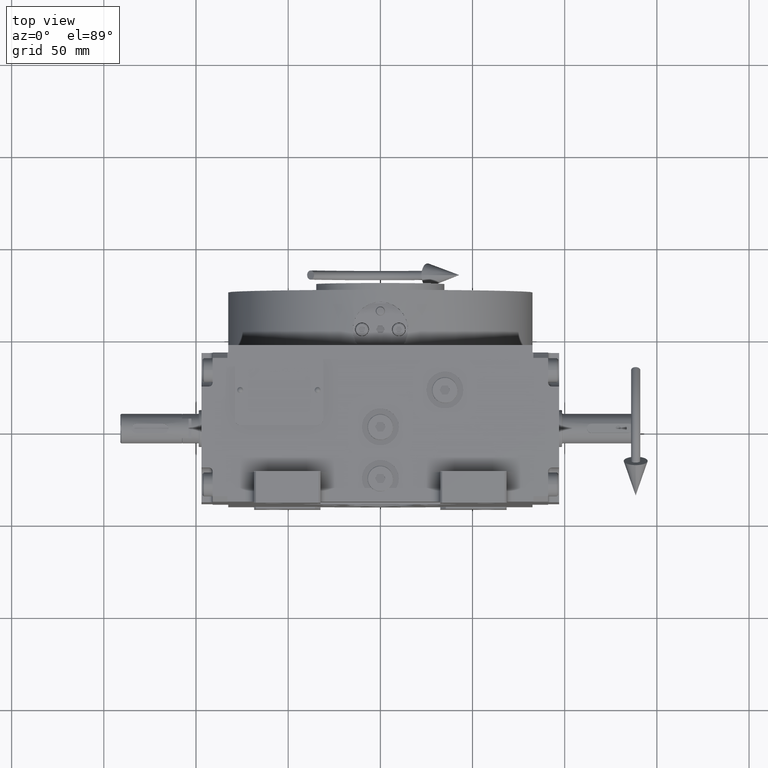
[diagram: clean part render]
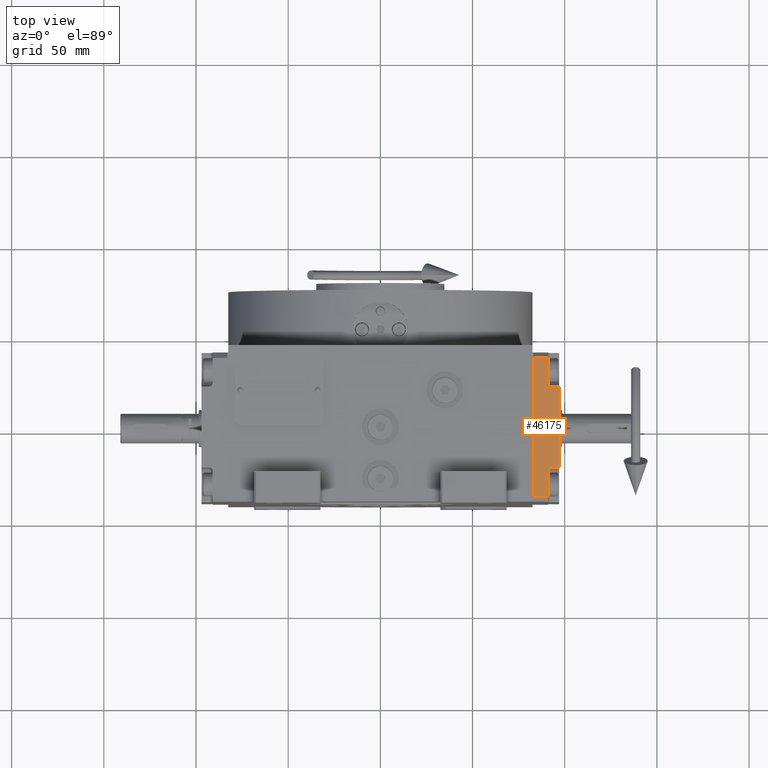
[diagram: same view with one face highlighted and labeled with its STEP entity id]
A machine part, top view. The second image highlights one B-rep face of the part: STEP entity #46175.
In plain terms, the highlighted planar face has unit normal (-0, -0, 1).
Its self-contained STEP definition (entity closure, byte-faithful):
#37 = DIRECTION ( 'NONE',  ( -2.255140518769849223E-14, 1.000000000000000000, -3.469446951953614189E-15 ) ) ;
#949 = EDGE_CURVE ( 'NONE', #29723, #59287, #63447, .T. ) ;
#1239 = VECTOR ( 'NONE', #54648, 1000.000000000000000 ) ;
#1991 = ORIENTED_EDGE ( 'NONE', *, *, #7158, .F. ) ;
#2459 = DIRECTION ( 'NONE',  ( -1.000000000000000000, 2.320366121466573383E-14, -8.437694987151237039E-15 ) ) ;
#2757 = VERTEX_POINT ( 'NONE', #19494 ) ;
#6432 = VECTOR ( 'NONE', #45366, 1000.000000000000000 ) ;
#7158 = EDGE_CURVE ( 'NONE', #9816, #40357, #9417, .T. ) ;
#7923 = EDGE_CURVE ( 'NONE', #19064, #9816, #40047, .T. ) ;
#8378 = CARTESIAN_POINT ( 'NONE',  ( -37.50000000000052580, 5.273559366969493567E-13, -49.00000000000001421 ) ) ;
#9417 = LINE ( 'NONE', #51969, #39522 ) ;
#9537 = EDGE_CURVE ( 'NONE', #30318, #33118, #25535, .T. ) ;
#9816 = VERTEX_POINT ( 'NONE', #8378 ) ;
#11724 = CARTESIAN_POINT ( 'NONE',  ( 40.49999999999947420, -1.054711873393898713E-12, -48.99999999999998579 ) ) ;
#12066 = FACE_OUTER_BOUND ( 'NONE', #28866, .T. ) ;
#12111 = ORIENTED_EDGE ( 'NONE', *, *, #58128, .T. ) ;
#12430 = CARTESIAN_POINT ( 'NONE',  ( 23.99999999999973710, -8.000000000000534683, -48.99999999999998579 ) ) ;
#13100 = DIRECTION ( 'NONE',  ( 8.437694987151285948E-15, 2.109423746787513042E-15, -1.000000000000000000 ) ) ;
#15024 = EDGE_CURVE ( 'NONE', #33118, #60285, #16511, .T. ) ;
#16345 = AXIS2_PLACEMENT_3D ( 'NONE', #11724, #13100, #2459 ) ;
#16511 = CIRCLE ( 'NONE', #52747, 2.000000000000000000 ) ;
#17699 = ORIENTED_EDGE ( 'NONE', *, *, #28647, .T. ) ;
#18133 = AXIS2_PLACEMENT_3D ( 'NONE', #52065, #41796, #68041 ) ;
#19064 = VERTEX_POINT ( 'NONE', #20664 ) ;
#19494 = CARTESIAN_POINT ( 'NONE',  ( -22.00000000000013145, -13.99999999999947065, -49.00000000000001421 ) ) ;
#19569 = CARTESIAN_POINT ( 'NONE',  ( -37.50000000000026290, -7.999999999999466205, -49.00000000000001421 ) ) ;
#20401 = LINE ( 'NONE', #68620, #53395 ) ;
#20664 = CARTESIAN_POINT ( 'NONE',  ( 37.49999999999947420, -5.273559366969493567E-13, -48.99999999999998579 ) ) ;
#21828 = CARTESIAN_POINT ( 'NONE',  ( -24.00000000000026290, -7.999999999999466205, -49.00000000000001421 ) ) ;
#22162 = DIRECTION ( 'NONE',  ( -1.000000000000000000, 2.320366121466573383E-14, -8.437694987151237039E-15 ) ) ;
#24571 = DIRECTION ( 'NONE',  ( -1.000000000000000000, 2.320366121466573383E-14, -8.437694987151237039E-15 ) ) ;
#25535 = LINE ( 'NONE', #63870, #36953 ) ;
#28647 = EDGE_CURVE ( 'NONE', #19064, #30318, #20401, .T. ) ;
#28704 = LINE ( 'NONE', #43314, #1239 ) ;
#28866 = EDGE_LOOP ( 'NONE', ( #1991, #59182, #17699, #64110, #69569, #40195, #42391, #53796, #36691, #12111 ) ) ;
#29723 = VERTEX_POINT ( 'NONE', #52517 ) ;
#30318 = VERTEX_POINT ( 'NONE', #67185 ) ;
#32524 = VERTEX_POINT ( 'NONE', #44428 ) ;
#33118 = VERTEX_POINT ( 'NONE', #12430 ) ;
#33948 = VECTOR ( 'NONE', #61684, 1000.000000000000000 ) ;
#34380 = CARTESIAN_POINT ( 'NONE',  ( 21.99999999999986855, -14.00000000000052580, -48.99999999999998579 ) ) ;
#36024 = DIRECTION ( 'NONE',  ( 2.320366121466573383E-14, -1.000000000000000000, 2.109423746787903923E-15 ) ) ;
#36546 = EDGE_CURVE ( 'NONE', #32524, #60285, #49650, .T. ) ;
#36691 = ORIENTED_EDGE ( 'NONE', *, *, #949, .T. ) ;
#36953 = VECTOR ( 'NONE', #42248, 1000.000000000000000 ) ;
#39357 = PLANE ( 'NONE',  #16345 ) ;
#39400 = VECTOR ( 'NONE', #24571, 1000.000000000000000 ) ;
#39522 = VECTOR ( 'NONE', #42056, 1000.000000000000000 ) ;
#40047 = LINE ( 'NONE', #62730, #33948 ) ;
#40195 = ORIENTED_EDGE ( 'NONE', *, *, #36546, .F. ) ;
#40357 = VERTEX_POINT ( 'NONE', #19569 ) ;
#40581 = CARTESIAN_POINT ( 'NONE',  ( -24.00000000000026290, -7.999999999999466205, -49.00000000000001421 ) ) ;
#41796 = DIRECTION ( 'NONE',  ( 8.437694987151235461E-15, -2.109423746787904317E-15, 1.000000000000000000 ) ) ;
#41819 = VECTOR ( 'NONE', #22162, 1000.000000000000000 ) ;
#42056 = DIRECTION ( 'NONE',  ( 2.320366121466573383E-14, -1.000000000000000000, 2.109423746787903923E-15 ) ) ;
#42248 = DIRECTION ( 'NONE',  ( -1.000000000000000000, 2.320366121466573383E-14, -8.437694987151237039E-15 ) ) ;
#42391 = ORIENTED_EDGE ( 'NONE', *, *, #59265, .T. ) ;
#43314 = CARTESIAN_POINT ( 'NONE',  ( -22.00000000000013145, -13.99999999999947065, -49.00000000000001421 ) ) ;
#44428 = CARTESIAN_POINT ( 'NONE',  ( 21.99999999999986855, -14.00000000000052580, -48.99999999999998579 ) ) ;
#45366 = DIRECTION ( 'NONE',  ( -2.320366121466573383E-14, 1.000000000000000000, -2.109423746787903923E-15 ) ) ;
#46175 = ADVANCED_FACE ( 'NONE', ( #12066 ), #39357, .T. ) ;
#48785 = LINE ( 'NONE', #59123, #41819 ) ;
#49650 = LINE ( 'NONE', #34380, #6432 ) ;
#51836 = CARTESIAN_POINT ( 'NONE',  ( 23.99999999999986855, -10.00000000000052225, -48.99999999999998579 ) ) ;
#51969 = CARTESIAN_POINT ( 'NONE',  ( -37.50000000000052580, 5.273559366969493567E-13, -49.00000000000001421 ) ) ;
#52065 = CARTESIAN_POINT ( 'NONE',  ( -24.00000000000013145, -9.999999999999467093, -49.00000000000001421 ) ) ;
#52517 = CARTESIAN_POINT ( 'NONE',  ( -22.00000000000013145, -9.999999999999467093, -49.00000000000001421 ) ) ;
#52747 = AXIS2_PLACEMENT_3D ( 'NONE', #51836, #68158, #37 ) ;
#53395 = VECTOR ( 'NONE', #36024, 1000.000000000000000 ) ;
#53796 = ORIENTED_EDGE ( 'NONE', *, *, #66483, .T. ) ;
#54648 = DIRECTION ( 'NONE',  ( -2.320366121466573383E-14, 1.000000000000000000, -2.109423746787903923E-15 ) ) ;
#58128 = EDGE_CURVE ( 'NONE', #59287, #40357, #63267, .T. ) ;
#59123 = CARTESIAN_POINT ( 'NONE',  ( 21.99999999999986855, -14.00000000000052580, -48.99999999999998579 ) ) ;
#59182 = ORIENTED_EDGE ( 'NONE', *, *, #7923, .F. ) ;
#59265 = EDGE_CURVE ( 'NONE', #32524, #2757, #48785, .T. ) ;
#59287 = VERTEX_POINT ( 'NONE', #21828 ) ;
#60285 = VERTEX_POINT ( 'NONE', #69888 ) ;
#61684 = DIRECTION ( 'NONE',  ( -1.000000000000000000, 2.320366121466573383E-14, -8.437694987151237039E-15 ) ) ;
#62730 = CARTESIAN_POINT ( 'NONE',  ( 37.49999999999947420, -5.273559366969493567E-13, -48.99999999999998579 ) ) ;
#63267 = LINE ( 'NONE', #40581, #39400 ) ;
#63447 = CIRCLE ( 'NONE', #18133, 2.000000000000001776 ) ;
#63870 = CARTESIAN_POINT ( 'NONE',  ( 37.49999999999973710, -8.000000000000534683, -48.99999999999998579 ) ) ;
#64110 = ORIENTED_EDGE ( 'NONE', *, *, #9537, .T. ) ;
#66483 = EDGE_CURVE ( 'NONE', #2757, #29723, #28704, .T. ) ;
#67185 = CARTESIAN_POINT ( 'NONE',  ( 37.49999999999973710, -8.000000000000534683, -48.99999999999998579 ) ) ;
#68041 = DIRECTION ( 'NONE',  ( 1.000000000000000000, -2.168404344971006975E-14, 6.938893903907222067E-15 ) ) ;
#68158 = DIRECTION ( 'NONE',  ( 8.437694987151235461E-15, -2.109423746787904317E-15, 1.000000000000000000 ) ) ;
#68620 = CARTESIAN_POINT ( 'NONE',  ( 37.49999999999947420, -5.273559366969493567E-13, -48.99999999999998579 ) ) ;
#69569 = ORIENTED_EDGE ( 'NONE', *, *, #15024, .T. ) ;
#69888 = CARTESIAN_POINT ( 'NONE',  ( 21.99999999999986855, -10.00000000000052225, -48.99999999999998579 ) ) ;